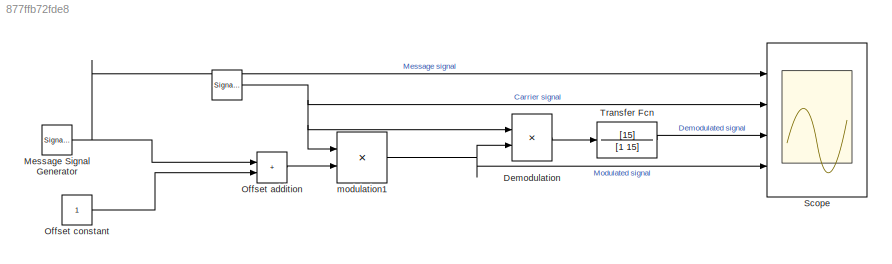
MODEL slx_877ffb72fde8
KIND model
CONFIG AbsTol = auto
CONFIG EnableMultiTasking = off
CONFIG FixedStep = auto
CONFIG MaxStep = auto
CONFIG MinStep = auto
CONFIG RelTol = 1e-3
CONFIG SampleTimeConstraint = Unconstrained
CONFIG SolverName = VariableStepAuto
CONFIG StartTime = 0.0
CONFIG StopTime = 10.0
BLOCK [SignalGenerator]  
  Frequency = 2*pi*25
  Ports = [0, 1]
  Units = rad/sec
BLOCK [Product] Demodulation
  Ports = [2, 1]
BLOCK [SignalGenerator] Message Signal Generator
  Frequency = 2*pi
  Ports = [0, 1]
  Units = rad/sec
BLOCK [Sum] Offset addition
  IconShape = rectangular
  Ports = [2, 1]
BLOCK [Constant] Offset constant
BLOCK [Scope] Scope
  Floating = off
  NumInputPorts = 4
  Ports = [4]
  ScopeSpecificationString = Simulink.scopes.TimeScopeBlockCfg('CurrentConfiguration', extmgr.ConfigurationSet(extmgr.Configuration('Core','General UI',true),extmgr.Configuration('Core','Source UI',true),extmgr.Configuration('Sources','WiredSimulink',true,'DataLoggingVariableName','ScopeData1'),extmgr.Configuration('Visuals','Time Domain',true,'SerializedDisplays',{struct('MinYLimReal','-1.24999','MaxYLimReal','1.25','YLabelR...<+3483ch>
BLOCK [TransferFcn] Transfer Fcn
  Denominator = [1 15]
  Numerator = [15]
BLOCK [Product] modulation1
  Ports = [2, 1]
NET  :1 -> Demodulation:1, Scope:2, modulation1:1
LINE Demodulation:1 -> Transfer Fcn:1
NET Message Signal Generator:1 -> Offset addition:1, Scope:1
LINE Offset addition:1 -> modulation1:2
LINE Offset constant:1 -> Offset addition:2
LINE Transfer Fcn:1 -> Scope:3
NET modulation1:1 -> Demodulation:2, Scope:4
note: NET lines group one-source signal fan-out (src -> all destinations, sorted); 1:1 wires keep LINE
